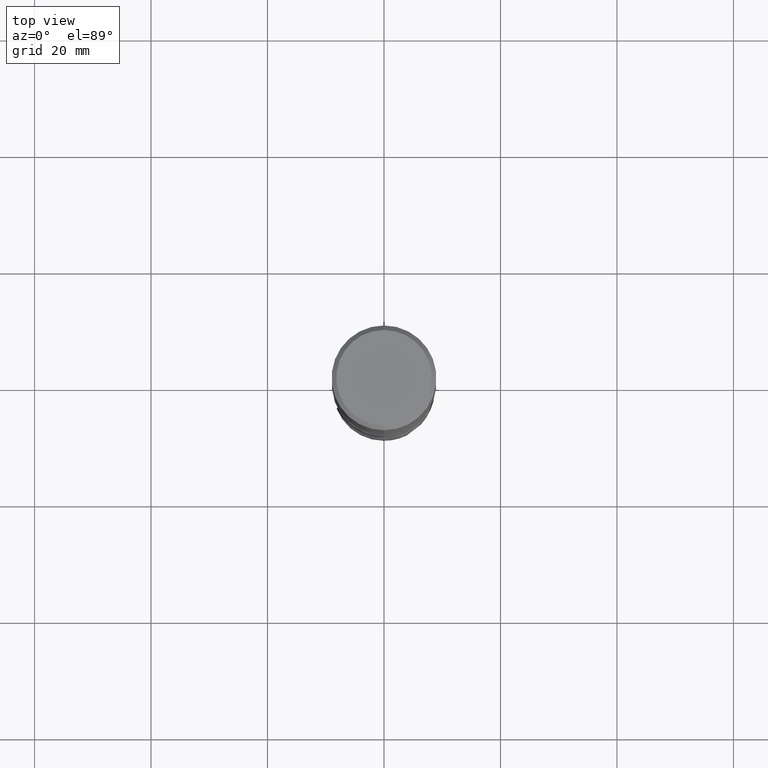
[diagram: clean part render]
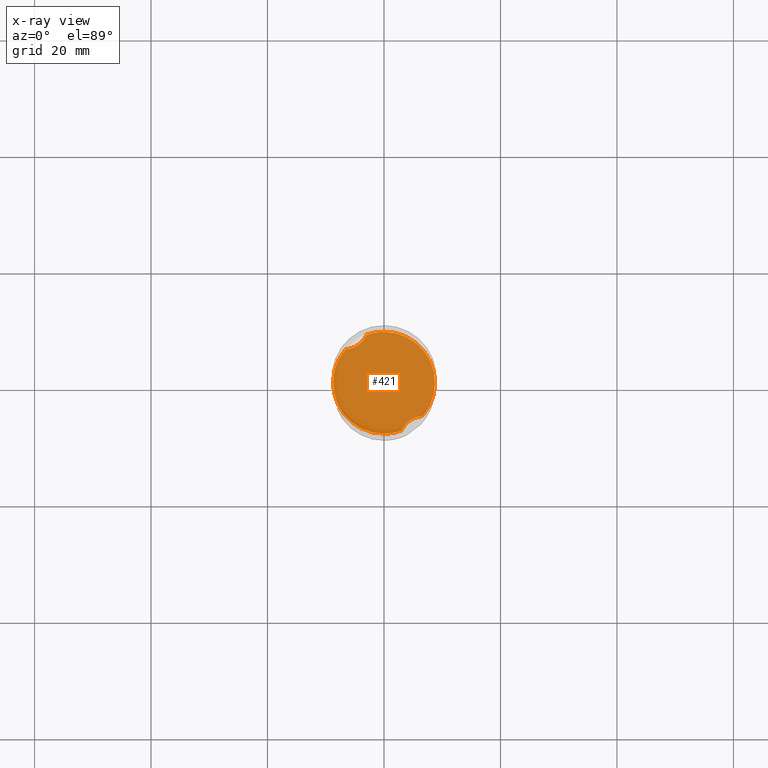
[diagram: x-ray — body ghosted, one internal face saturated and labeled with its STEP entity id]
A machine part, top view, then the same camera in x-ray: the body is ghosted and one INTERNAL B-rep face — a face not visible from any outside direction — is saturated and labeled: STEP entity #421.
In plain terms, the highlighted planar face has unit normal (-0, 0, 1).
Its self-contained STEP definition (entity closure, byte-faithful):
#289=EDGE_CURVE('',#479,#457,#774,.T.);
#397=VERTEX_POINT('',#894);
#421=ADVANCED_FACE('',(#923),#924,.T.);
#457=VERTEX_POINT('',#961);
#479=VERTEX_POINT('',#986);
#503=VERTEX_POINT('',#1011);
#577=EDGE_CURVE('',#503,#479,#1094,.T.);
#595=EDGE_CURVE('',#397,#611,#1112,.T.);
#611=VERTEX_POINT('',#1131);
#645=EDGE_CURVE('',#503,#667,#1168,.T.);
#667=VERTEX_POINT('',#1192);
#673=EDGE_CURVE('',#397,#457,#1198,.T.);
#723=EDGE_CURVE('',#611,#667,#1250,.T.);
#774=CIRCLE('',#1392,8.7499);
#894=CARTESIAN_POINT('',(-2.97701163631891,8.22788865549491,-50.0));
#923=FACE_OUTER_BOUND('',#1858,.T.);
#924=PLANE('',#1859);
#961=CARTESIAN_POINT('',(-6.63187349019705,5.70780203055621,-50.0));
#986=CARTESIAN_POINT('',(1.07069657317314E-015,-8.7499,-50.0));
#1011=CARTESIAN_POINT('',(2.97701163631893,-8.2278886554949,-50.0));
#1094=CIRCLE('',#4295,8.7499);
#1112=CIRCLE('',#4476,8.7499);
#1131=CARTESIAN_POINT('',(-1.07026289224004E-015,8.7499,-50.0));
#1168=B_SPLINE_CURVE_WITH_KNOTS('',3,(#4942,#4943,#4944,#4945,#4946,#4947,#4948,#4949,#4950,#4951),.UNSPECIFIED.,.F.,.F.,(4,2,2,2,4),(0.0,1.89437961589918,3.62938960337569,5.38410260870717,7.51281131798822),.UNSPECIFIED.);
#1192=CARTESIAN_POINT('',(6.63187349019704,-5.70780203055622,-50.0));
#1198=B_SPLINE_CURVE_WITH_KNOTS('',3,(#5083,#5084,#5085,#5086,#5087,#5088,#5089,#5090,#5091,#5092),.UNSPECIFIED.,.F.,.F.,(4,2,2,2,4),(0.0,1.89437961589908,3.62938960337551,5.38410260870692,7.51281131798792),.UNSPECIFIED.);
#1250=CIRCLE('',#5414,8.7499);
#1392=AXIS2_PLACEMENT_3D('',#5462,#5463,#5464);
#1858=EDGE_LOOP('',(#5695,#5696,#5697,#5698,#5699,#5700));
#1859=AXIS2_PLACEMENT_3D('',#5701,#5702,#5703);
#4295=AXIS2_PLACEMENT_3D('',#5865,#5866,#5867);
#4476=AXIS2_PLACEMENT_3D('',#5868,#5869,#5870);
#4942=CARTESIAN_POINT('',(2.74199787087641,-8.7999,-50.0));
#4943=CARTESIAN_POINT('',(2.9461909206393,-8.20236609440774,-50.0));
#4944=CARTESIAN_POINT('',(3.25547046504476,-7.65088679469312,-49.9999999999774));
#4945=CARTESIAN_POINT('',(4.05543135956222,-6.74677654869636,-49.9999999999774));
#4946=CARTESIAN_POINT('',(4.51485600838567,-6.39739188955216,-50.0000000000013));
#4947=CARTESIAN_POINT('',(5.55869641553649,-5.89073384664053,-50.0000000000013));
#4948=CARTESIAN_POINT('',(6.12583509665995,-5.74459975825155,-50.0000000000002));
#4949=CARTESIAN_POINT('',(7.41506229825283,-5.64931918146913,-50.0000000000002));
#4950=CARTESIAN_POINT('',(8.12436621678291,-5.74970005201506,-50.0));
#4951=CARTESIAN_POINT('',(8.7999,-5.97056682431864,-50.0));
#5083=CARTESIAN_POINT('',(-2.7419978708764,8.7999,-50.0));
#5084=CARTESIAN_POINT('',(-2.94619092063928,8.20236609440777,-50.0));
#5085=CARTESIAN_POINT('',(-3.25547046504474,7.65088679469313,-49.9999999999774));
#5086=CARTESIAN_POINT('',(-4.05543135956222,6.74677654869634,-49.9999999999774));
#5087=CARTESIAN_POINT('',(-4.51485600838567,6.39739188955216,-50.0000000000013));
#5088=CARTESIAN_POINT('',(-5.55869641553648,5.89073384664052,-50.0000000000013));
#5089=CARTESIAN_POINT('',(-6.12583509665993,5.74459975825155,-50.0000000000002));
#5090=CARTESIAN_POINT('',(-7.41506229825283,5.64931918146912,-50.0000000000002));
#5091=CARTESIAN_POINT('',(-8.12436621678291,5.74970005201506,-50.0));
#5092=CARTESIAN_POINT('',(-8.7999,5.97056682431863,-50.0));
#5414=AXIS2_PLACEMENT_3D('',#6009,#6010,#6011);
#5462=CARTESIAN_POINT('',(0.0,0.0,-50.0));
#5463=DIRECTION('',(0.0,0.0,-1.0));
#5464=DIRECTION('',(0.0,1.0,0.0));
#5695=ORIENTED_EDGE('',*,*,#645,.T.);
#5696=ORIENTED_EDGE('',*,*,#723,.F.);
#5697=ORIENTED_EDGE('',*,*,#595,.F.);
#5698=ORIENTED_EDGE('',*,*,#673,.T.);
#5699=ORIENTED_EDGE('',*,*,#289,.F.);
#5700=ORIENTED_EDGE('',*,*,#577,.F.);
#5701=CARTESIAN_POINT('',(0.0,4.37495,-50.0));
#5702=DIRECTION('',(-0.0,0.0,1.0));
#5703=DIRECTION('',(0.0,-1.0,0.0));
#5865=CARTESIAN_POINT('',(0.0,0.0,-50.0));
#5866=DIRECTION('',(0.0,0.0,-1.0));
#5867=DIRECTION('',(0.0,1.0,0.0));
#5868=CARTESIAN_POINT('',(0.0,0.0,-50.0));
#5869=DIRECTION('',(0.0,0.0,-1.0));
#5870=DIRECTION('',(0.0,1.0,0.0));
#6009=CARTESIAN_POINT('',(0.0,0.0,-50.0));
#6010=DIRECTION('',(0.0,0.0,-1.0));
#6011=DIRECTION('',(0.0,1.0,0.0));